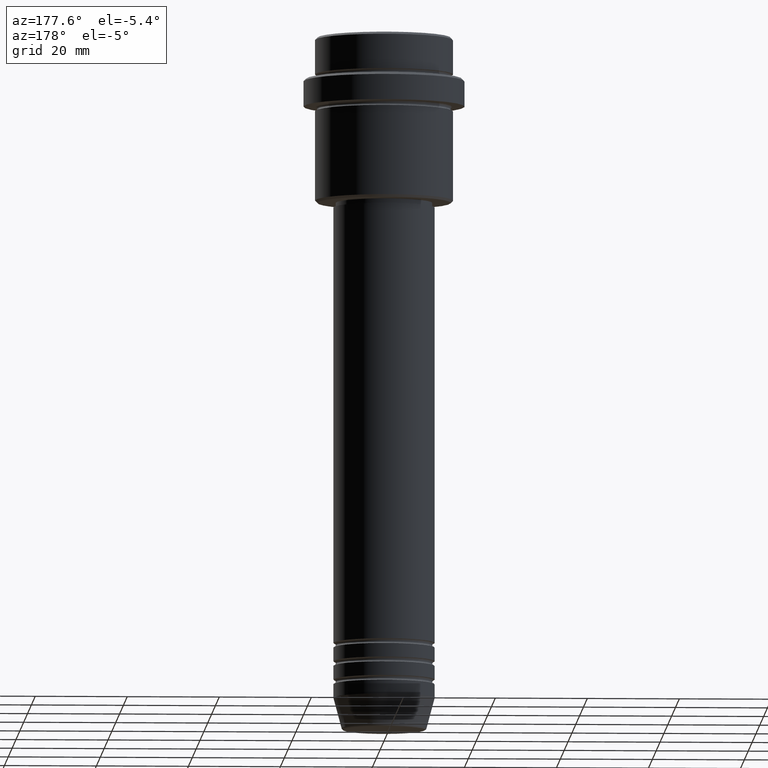
[diagram: clean part render]
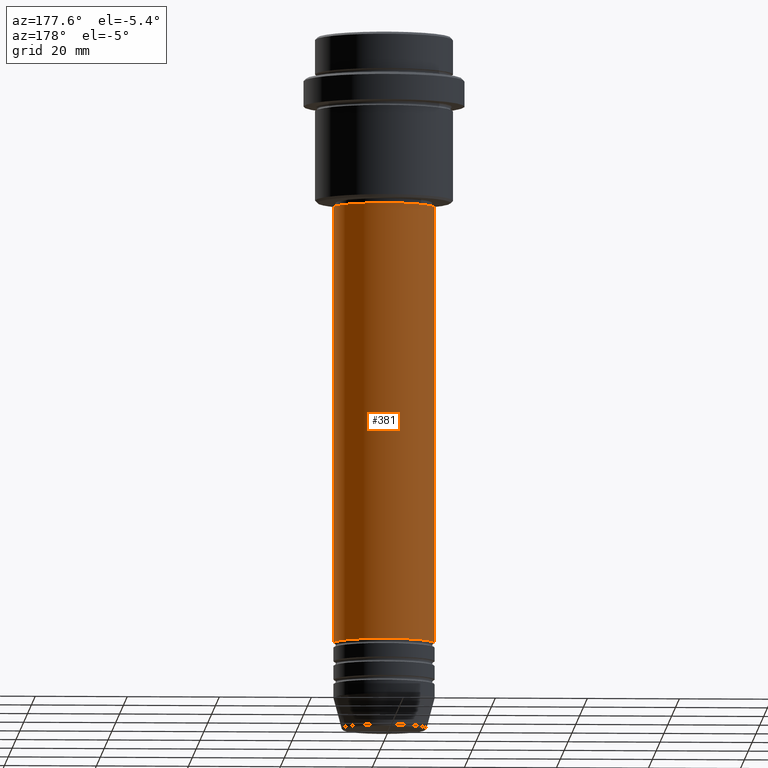
[diagram: same view with one face highlighted and labeled with its STEP entity id]
A machine part, auxiliary view. The second image highlights one B-rep face of the part: STEP entity #381.
In plain terms, the highlighted cylindrical surface (partial cylindrical patch) has radius 11 mm, axis along (-0, -0, 1).
Its self-contained STEP definition (entity closure, byte-faithful):
#27 = CARTESIAN_POINT ( 'NONE',  ( -10.99999999999999822, 1.347111479062088207E-15, -37.00000000000000000 ) ) ;
#44 = CARTESIAN_POINT ( 'NONE',  ( 0.000000000000000000, 0.000000000000000000, 0.000000000000000000 ) ) ;
#150 = CYLINDRICAL_SURFACE ( 'NONE', #1404, 11.00000000000000000 ) ;
#269 = DIRECTION ( 'NONE',  ( 1.000000000000000000, 0.000000000000000000, 0.000000000000000000 ) ) ;
#286 = ORIENTED_EDGE ( 'NONE', *, *, #1288, .F. ) ;
#299 = EDGE_LOOP ( 'NONE', ( #954, #1219, #286, #501 ) ) ;
#310 = VERTEX_POINT ( 'NONE', #27 ) ;
#327 = VECTOR ( 'NONE', #832, 1000.000000000000000 ) ;
#381 = ADVANCED_FACE ( 'NONE', ( #914 ), #150, .T. ) ;
#397 = VECTOR ( 'NONE', #519, 1000.000000000000000 ) ;
#478 = EDGE_CURVE ( 'NONE', #1416, #1045, #1156, .T. ) ;
#501 = ORIENTED_EDGE ( 'NONE', *, *, #1350, .F. ) ;
#519 = DIRECTION ( 'NONE',  ( -0.000000000000000000, -0.000000000000000000, 1.000000000000000000 ) ) ;
#571 = DIRECTION ( 'NONE',  ( 1.000000000000000000, 0.000000000000000000, 0.000000000000000000 ) ) ;
#820 = CARTESIAN_POINT ( 'NONE',  ( 0.000000000000000000, 0.000000000000000000, -37.00000000000000000 ) ) ;
#832 = DIRECTION ( 'NONE',  ( -0.000000000000000000, -0.000000000000000000, 1.000000000000000000 ) ) ;
#857 = VERTEX_POINT ( 'NONE', #1387 ) ;
#858 = CIRCLE ( 'NONE', #1230, 10.99999999999999822 ) ;
#891 = DIRECTION ( 'NONE',  ( -0.000000000000000000, -0.000000000000000000, 1.000000000000000000 ) ) ;
#914 = FACE_OUTER_BOUND ( 'NONE', #299, .T. ) ;
#947 = LINE ( 'NONE', #1384, #397 ) ;
#954 = ORIENTED_EDGE ( 'NONE', *, *, #478, .T. ) ;
#1045 = VERTEX_POINT ( 'NONE', #1330 ) ;
#1078 = CARTESIAN_POINT ( 'NONE',  ( 11.00000000000000000, 0.000000000000000000, -131.9999999999998579 ) ) ;
#1155 = DIRECTION ( 'NONE',  ( 1.000000000000000000, 0.000000000000000000, 0.000000000000000000 ) ) ;
#1156 = CIRCLE ( 'NONE', #1226, 11.00000000000000000 ) ;
#1164 = DIRECTION ( 'NONE',  ( -0.000000000000000000, -0.000000000000000000, 1.000000000000000000 ) ) ;
#1177 = CARTESIAN_POINT ( 'NONE',  ( 0.000000000000000000, 0.000000000000000000, -131.9999999999998579 ) ) ;
#1219 = ORIENTED_EDGE ( 'NONE', *, *, #1385, .T. ) ;
#1226 = AXIS2_PLACEMENT_3D ( 'NONE', #1177, #1164, #1155 ) ;
#1230 = AXIS2_PLACEMENT_3D ( 'NONE', #820, #1256, #269 ) ;
#1256 = DIRECTION ( 'NONE',  ( -0.000000000000000000, -0.000000000000000000, 1.000000000000000000 ) ) ;
#1288 = EDGE_CURVE ( 'NONE', #857, #310, #858, .T. ) ;
#1292 = CARTESIAN_POINT ( 'NONE',  ( -11.00000000000000000, 1.347111479062088405E-15, 0.000000000000000000 ) ) ;
#1330 = CARTESIAN_POINT ( 'NONE',  ( -11.00000000000000000, 1.347111479062088405E-15, -131.9999999999998579 ) ) ;
#1350 = EDGE_CURVE ( 'NONE', #1416, #857, #947, .T. ) ;
#1374 = LINE ( 'NONE', #1292, #327 ) ;
#1384 = CARTESIAN_POINT ( 'NONE',  ( 11.00000000000000000, 0.000000000000000000, 0.000000000000000000 ) ) ;
#1385 = EDGE_CURVE ( 'NONE', #1045, #310, #1374, .T. ) ;
#1387 = CARTESIAN_POINT ( 'NONE',  ( 10.99999999999999822, 0.000000000000000000, -37.00000000000000000 ) ) ;
#1404 = AXIS2_PLACEMENT_3D ( 'NONE', #44, #891, #571 ) ;
#1416 = VERTEX_POINT ( 'NONE', #1078 ) ;